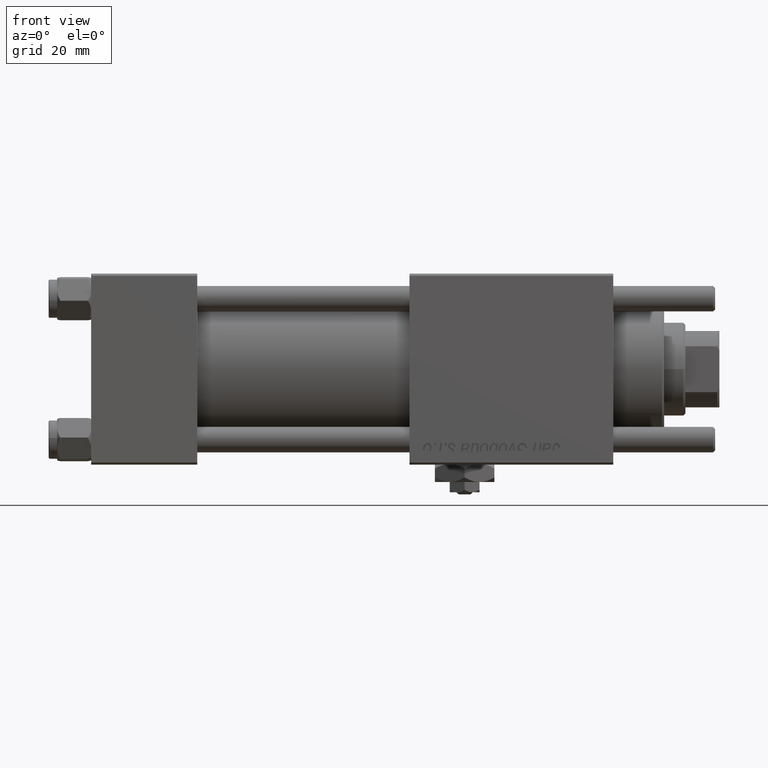
[diagram: clean part render]
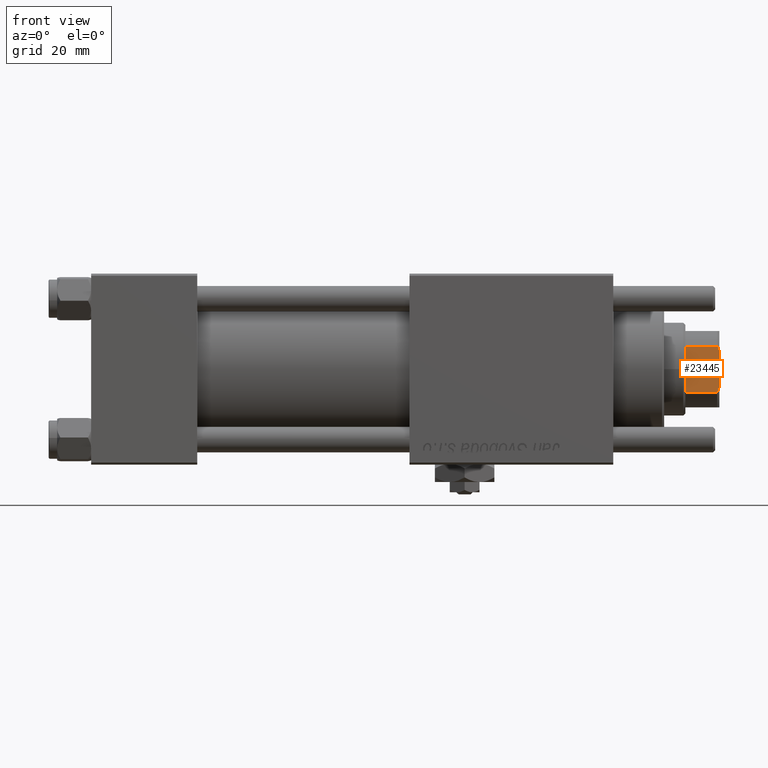
[diagram: same view with one face highlighted and labeled with its STEP entity id]
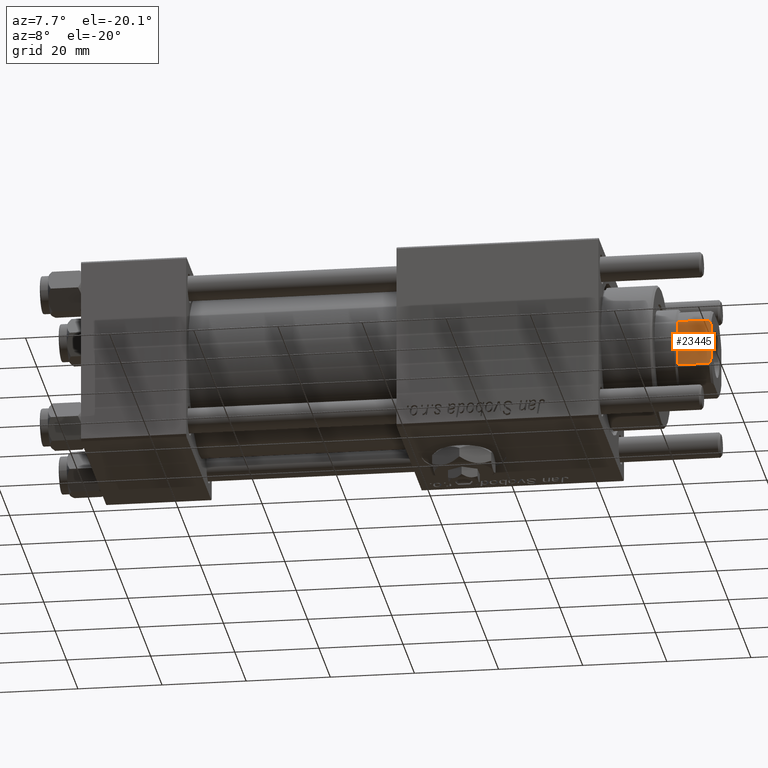
[diagram: same view with one face highlighted and labeled with its STEP entity id]
A machine part, front view. The second image highlights one B-rep face of the part: STEP entity #23445.
A second angle (auxiliary view) of the same face is appended — the face is thin or edge-on in the first view.
In plain terms, the highlighted planar face has unit normal (0, 1, 0).
Its self-contained STEP definition (entity closure, byte-faithful):
#287 = EDGE_CURVE ( 'NONE', #16521, #41103, #8016, .T. ) ;
#896 = CARTESIAN_POINT ( 'NONE',  ( 8.999999999999996447, 5.408326913195991459, -0.001000000000001000089 ) ) ;
#1309 = DIRECTION ( 'NONE',  ( 1.927470528863119049E-16, -1.000000000000000000, 0.000000000000000000 ) ) ;
#1610 = EDGE_CURVE ( 'NONE', #23136, #6511, #33451, .T. ) ;
#2102 = VERTEX_POINT ( 'NONE', #21298 ) ;
#3437 = CARTESIAN_POINT ( 'NONE',  ( 8.999999999999998224, 4.358898943540600257, 123.0000000000000000 ) ) ;
#4344 = VECTOR ( 'NONE', #57762, 1000.000000000000000 ) ;
#4821 = CARTESIAN_POINT ( 'NONE',  ( 9.000000000000000000, -4.714305797500252027, 122.8450817439748448 ) ) ;
#6511 = VERTEX_POINT ( 'NONE', #3437 ) ;
#6560 = CARTESIAN_POINT ( 'NONE',  ( 9.000000000000000000, -5.063687070142444568, 122.6775166608139216 ) ) ;
#8016 = LINE ( 'NONE', #26078, #4344 ) ;
#10171 = CARTESIAN_POINT ( 'NONE',  ( 8.999999999999996447, 8.999999999999998224, 123.0000000000000000 ) ) ;
#10989 = CARTESIAN_POINT ( 'NONE',  ( 8.999999999999996447, -5.408326913195990571, 122.5000000000000000 ) ) ;
#12578 = VECTOR ( 'NONE', #23068, 1000.000000000000000 ) ;
#13174 = ORIENTED_EDGE ( 'NONE', *, *, #40435, .F. ) ;
#14665 = EDGE_CURVE ( 'NONE', #41173, #6511, #41121, .T. ) ;
#15676 = ORIENTED_EDGE ( 'NONE', *, *, #287, .T. ) ;
#16521 = VERTEX_POINT ( 'NONE', #32285 ) ;
#16832 = CARTESIAN_POINT ( 'NONE',  ( 8.999999999999996447, 5.063687070142427693, 122.6775166608138932 ) ) ;
#17038 = B_SPLINE_CURVE_WITH_KNOTS ( 'NONE', 3,
 ( #45374, #4821, #6560, #10989 ),
 .UNSPECIFIED., .F., .F.,
 ( 4, 4 ),
 ( 0.000000000000000000, 0.001162453897363195177 ),
 .UNSPECIFIED. ) ;
#17908 = ORIENTED_EDGE ( 'NONE', *, *, #55555, .T. ) ;
#19129 = ORIENTED_EDGE ( 'NONE', *, *, #14665, .F. ) ;
#20409 = EDGE_CURVE ( 'NONE', #41103, #23136, #46744, .T. ) ;
#21298 = CARTESIAN_POINT ( 'NONE',  ( 8.999999999999996447, -5.408326913195990571, 122.5000000000000000 ) ) ;
#21321 = DIRECTION ( 'NONE',  ( -0.000000000000000000, -0.000000000000000000, 1.000000000000000000 ) ) ;
#21865 = CARTESIAN_POINT ( 'NONE',  ( 8.999999999999998224, 4.714305797500204065, 122.8450817439748306 ) ) ;
#22998 = CARTESIAN_POINT ( 'NONE',  ( 8.999999999999996447, 5.408326913195991459, 122.4999999999999716 ) ) ;
#23068 = DIRECTION ( 'NONE',  ( -1.927470528863119049E-16, 1.000000000000000000, -0.000000000000000000 ) ) ;
#23136 = VERTEX_POINT ( 'NONE', #22998 ) ;
#23260 = AXIS2_PLACEMENT_3D ( 'NONE', #10171, #46003, #1309 ) ;
#23353 = ORIENTED_EDGE ( 'NONE', *, *, #20409, .T. ) ;
#23365 = CARTESIAN_POINT ( 'NONE',  ( 8.999999999999996447, 8.999999999999998224, 123.0000000000000000 ) ) ;
#23445 = ADVANCED_FACE ( 'NONE', ( #46588 ), #42141, .F. ) ;
#23639 = VECTOR ( 'NONE', #21321, 1000.000000000000000 ) ;
#26078 = CARTESIAN_POINT ( 'NONE',  ( 8.999999999999996447, 8.999999999999998224, 115.0000000000000000 ) ) ;
#26606 = CARTESIAN_POINT ( 'NONE',  ( 8.999999999999996447, 5.408326913195991459, 122.4999999999999716 ) ) ;
#28690 = DIRECTION ( 'NONE',  ( -0.000000000000000000, -0.000000000000000000, 1.000000000000000000 ) ) ;
#29964 = CARTESIAN_POINT ( 'NONE',  ( 8.999999999999998224, -4.358898943540672200, 123.0000000000000000 ) ) ;
#32285 = CARTESIAN_POINT ( 'NONE',  ( 8.999999999999996447, -5.408326913195990571, 115.0000000000000284 ) ) ;
#33451 = B_SPLINE_CURVE_WITH_KNOTS ( 'NONE', 3,
 ( #26606, #16832, #21865, #52978 ),
 .UNSPECIFIED., .F., .F.,
 ( 4, 4 ),
 ( 0.000000000000000000, 0.001162453897363273890 ),
 .UNSPECIFIED. ) ;
#39104 = LINE ( 'NONE', #52729, #23639 ) ;
#40435 = EDGE_CURVE ( 'NONE', #16521, #2102, #39104, .T. ) ;
#41103 = VERTEX_POINT ( 'NONE', #55161 ) ;
#41121 = LINE ( 'NONE', #23365, #12578 ) ;
#41173 = VERTEX_POINT ( 'NONE', #29964 ) ;
#42141 = PLANE ( 'NONE',  #23260 ) ;
#43151 = ORIENTED_EDGE ( 'NONE', *, *, #1610, .T. ) ;
#43948 = VECTOR ( 'NONE', #28690, 1000.000000000000000 ) ;
#44978 = EDGE_LOOP ( 'NONE', ( #23353, #43151, #19129, #17908, #13174, #15676 ) ) ;
#45374 = CARTESIAN_POINT ( 'NONE',  ( 8.999999999999998224, -4.358898943540672200, 123.0000000000000000 ) ) ;
#46003 = DIRECTION ( 'NONE',  ( -1.000000000000000000, -1.927470528863119049E-16, 0.000000000000000000 ) ) ;
#46588 = FACE_OUTER_BOUND ( 'NONE', #44978, .T. ) ;
#46744 = LINE ( 'NONE', #896, #43948 ) ;
#52729 = CARTESIAN_POINT ( 'NONE',  ( 8.999999999999996447, -5.408326913195990571, -0.001000000000001000089 ) ) ;
#52978 = CARTESIAN_POINT ( 'NONE',  ( 8.999999999999998224, 4.358898943540600257, 123.0000000000000000 ) ) ;
#55161 = CARTESIAN_POINT ( 'NONE',  ( 8.999999999999996447, 5.408326913195991459, 115.0000000000000284 ) ) ;
#55555 = EDGE_CURVE ( 'NONE', #41173, #2102, #17038, .T. ) ;
#57762 = DIRECTION ( 'NONE',  ( -1.927470528863119049E-16, 1.000000000000000000, -0.000000000000000000 ) ) ;